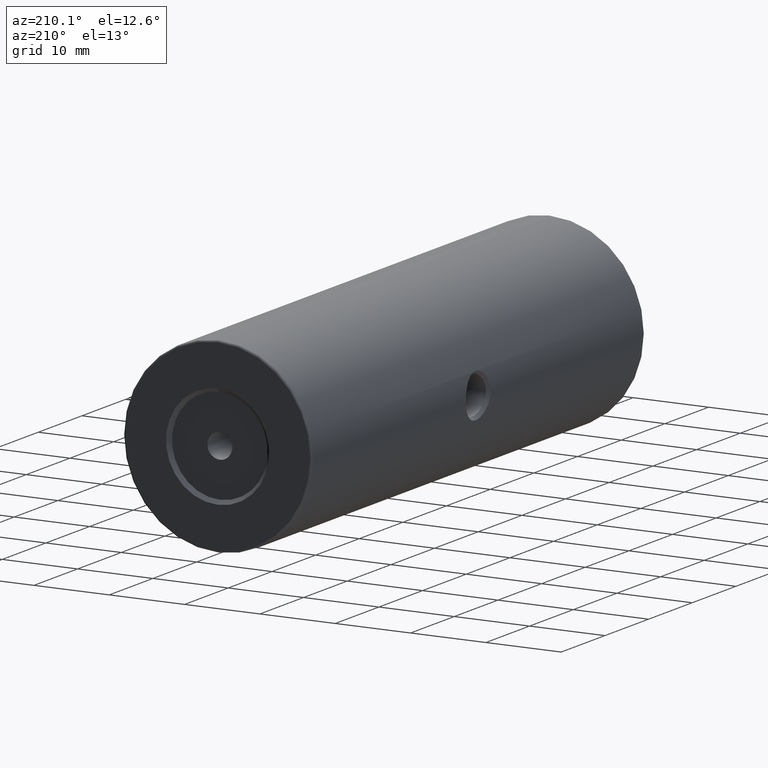
[diagram: clean part render]
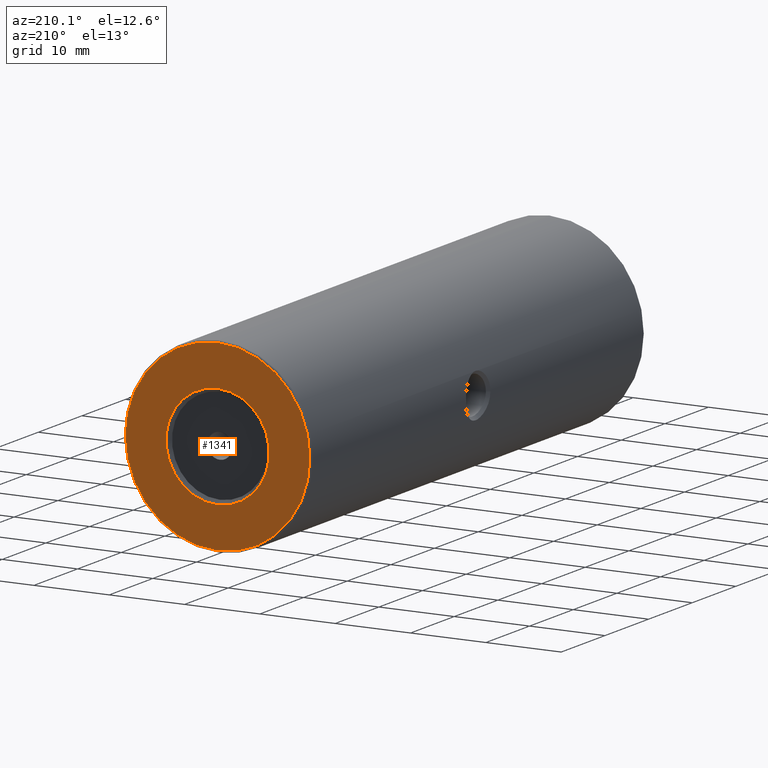
[diagram: same view with one face highlighted and labeled with its STEP entity id]
A machine part, auxiliary view. The second image highlights one B-rep face of the part: STEP entity #1341.
In plain terms, the highlighted planar face has unit normal (0, 1, 0).
Its self-contained STEP definition (entity closure, byte-faithful):
#63 = DIRECTION ( 'NONE',  ( 0.0000000000000000000, 1.000000000000000000, 0.0000000000000000000 ) ) ;
#252 = AXIS2_PLACEMENT_3D ( 'NONE', #2782, #1394, #1717 ) ;
#289 = DIRECTION ( 'NONE',  ( 0.0000000000000000000, 1.000000000000000000, 0.0000000000000000000 ) ) ;
#364 = CIRCLE ( 'NONE', #2936, 6.850000000000002309 ) ;
#365 = DIRECTION ( 'NONE',  ( 0.0000000000000000000, 0.0000000000000000000, 1.000000000000000000 ) ) ;
#391 = CARTESIAN_POINT ( 'NONE',  ( -22.50520183104453409, 39.49825218476939170, 50.00000000000000000 ) ) ;
#439 = ORIENTED_EDGE ( 'NONE', *, *, #2845, .T. ) ;
#592 = DIRECTION ( 'NONE',  ( -0.0000000000000000000, -1.000000000000000000, -0.0000000000000000000 ) ) ;
#675 = AXIS2_PLACEMENT_3D ( 'NONE', #2199, #63, #855 ) ;
#855 = DIRECTION ( 'NONE',  ( 0.0000000000000000000, 0.0000000000000000000, 1.000000000000000000 ) ) ;
#901 = CARTESIAN_POINT ( 'NONE',  ( -22.50520183104453409, 39.49825218476939170, 50.00000000000000000 ) ) ;
#1183 = CARTESIAN_POINT ( 'NONE',  ( -22.50520183104453409, 39.49825218476939170, 37.75000000000000711 ) ) ;
#1209 = VERTEX_POINT ( 'NONE', #1183 ) ;
#1251 = EDGE_CURVE ( 'NONE', #2276, #3056, #364, .T. ) ;
#1341 = ADVANCED_FACE ( 'NONE', ( #2486, #3046 ), #3065, .T. ) ;
#1394 = DIRECTION ( 'NONE',  ( 0.0000000000000000000, 1.000000000000000000, 0.0000000000000000000 ) ) ;
#1475 = DIRECTION ( 'NONE',  ( -0.0000000000000000000, -1.000000000000000000, -0.0000000000000000000 ) ) ;
#1494 = VERTEX_POINT ( 'NONE', #1841 ) ;
#1623 = AXIS2_PLACEMENT_3D ( 'NONE', #391, #1475, #2255 ) ;
#1717 = DIRECTION ( 'NONE',  ( 0.0000000000000000000, -0.0000000000000000000, 1.000000000000000000 ) ) ;
#1740 = CIRCLE ( 'NONE', #2298, 12.24999999999999645 ) ;
#1841 = CARTESIAN_POINT ( 'NONE',  ( -22.50520183104453409, 39.49825218476939170, 62.25000000000000000 ) ) ;
#2012 = EDGE_LOOP ( 'NONE', ( #2253, #439 ) ) ;
#2021 = CIRCLE ( 'NONE', #1623, 6.850000000000002309 ) ;
#2068 = CIRCLE ( 'NONE', #675, 12.24999999999999645 ) ;
#2199 = CARTESIAN_POINT ( 'NONE',  ( -22.50520183104453409, 39.49825218476939170, 50.00000000000000000 ) ) ;
#2253 = ORIENTED_EDGE ( 'NONE', *, *, #2439, .T. ) ;
#2255 = DIRECTION ( 'NONE',  ( 0.0000000000000000000, 0.0000000000000000000, 1.000000000000000000 ) ) ;
#2270 = ORIENTED_EDGE ( 'NONE', *, *, #1251, .T. ) ;
#2276 = VERTEX_POINT ( 'NONE', #2665 ) ;
#2298 = AXIS2_PLACEMENT_3D ( 'NONE', #3267, #289, #3232 ) ;
#2306 = ORIENTED_EDGE ( 'NONE', *, *, #3151, .T. ) ;
#2439 = EDGE_CURVE ( 'NONE', #1494, #1209, #2068, .T. ) ;
#2486 = FACE_OUTER_BOUND ( 'NONE', #2012, .T. ) ;
#2665 = CARTESIAN_POINT ( 'NONE',  ( -22.50520183104453409, 39.49825218476939170, 56.85000000000000142 ) ) ;
#2782 = CARTESIAN_POINT ( 'NONE',  ( -22.50520183104453409, 39.49825218476939170, 50.00000000000000000 ) ) ;
#2845 = EDGE_CURVE ( 'NONE', #1209, #1494, #1740, .T. ) ;
#2936 = AXIS2_PLACEMENT_3D ( 'NONE', #901, #592, #365 ) ;
#2952 = CARTESIAN_POINT ( 'NONE',  ( -22.50520183104453409, 39.49825218476939170, 43.14999999999999858 ) ) ;
#2969 = EDGE_LOOP ( 'NONE', ( #2270, #2306 ) ) ;
#3046 = FACE_BOUND ( 'NONE', #2969, .T. ) ;
#3056 = VERTEX_POINT ( 'NONE', #2952 ) ;
#3065 = PLANE ( 'NONE',  #252 ) ;
#3151 = EDGE_CURVE ( 'NONE', #3056, #2276, #2021, .T. ) ;
#3232 = DIRECTION ( 'NONE',  ( 0.0000000000000000000, 0.0000000000000000000, 1.000000000000000000 ) ) ;
#3267 = CARTESIAN_POINT ( 'NONE',  ( -22.50520183104453409, 39.49825218476939170, 50.00000000000000000 ) ) ;